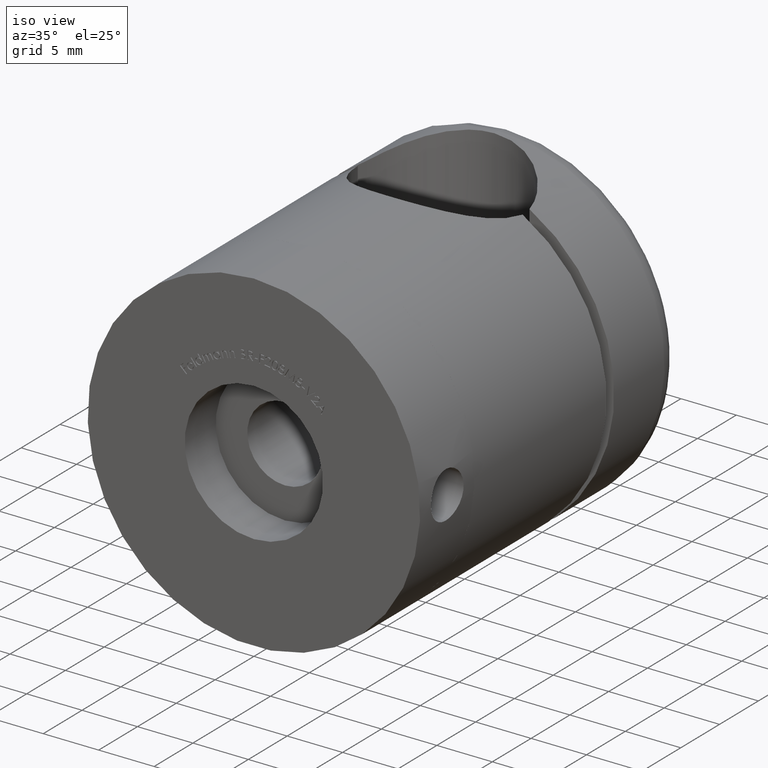
[diagram: clean part render]
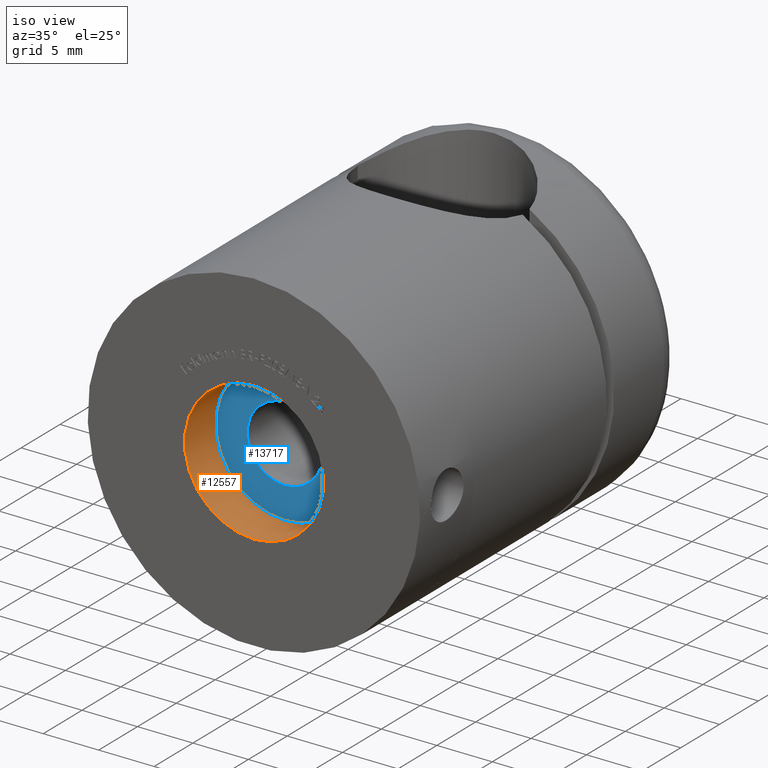
[diagram: same view with the hole feature highlighted: cylindrical wall and planar end face, labeled with their STEP entity ids]
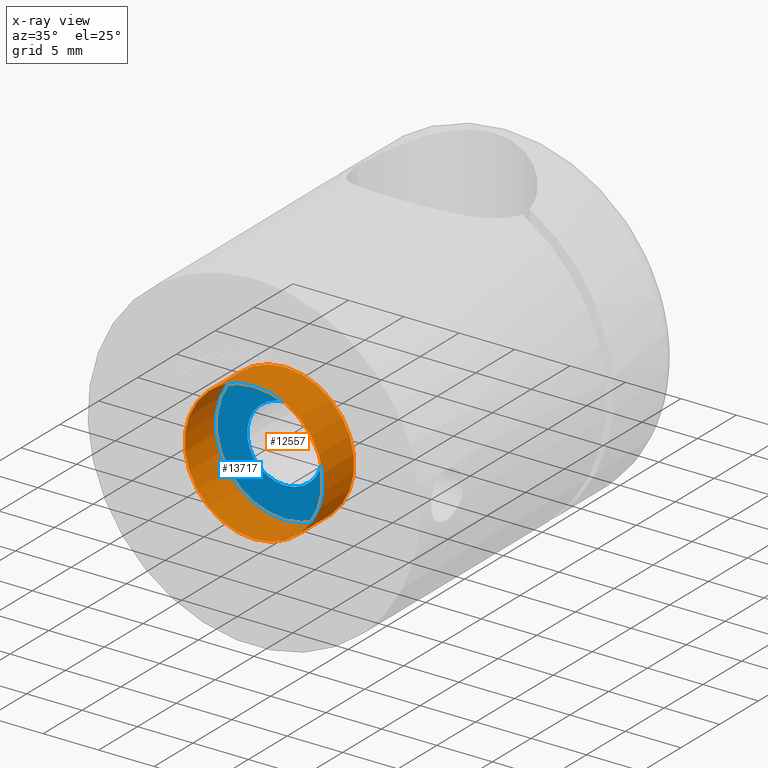
[diagram: x-ray of the same camera — body ghosted, the hole faces saturated]
A machine part, iso view. The highlighted faces form one hole feature of diameter 12.5 mm: the cylindrical wall (entity #12557, orange) and its adjacent planar end face (entity #13717, blue) — they share a circular edge in the B-rep.
The next image is the same camera in x-ray (body ghosted, the hole faces saturated) — the bore reads through the body.
Wall:
#772 = FACE_OUTER_BOUND ( 'NONE', #7013, .T. ) ;
#1117 = DIRECTION ( 'NONE',  ( -0.0000000000000000000, -1.000000000000000000, -0.0000000000000000000 ) ) ;
#2515 = ORIENTED_EDGE ( 'NONE', *, *, #9032, .T. ) ;
#3963 = AXIS2_PLACEMENT_3D ( 'NONE', #4089, #14645, #17186 ) ;
#4089 = CARTESIAN_POINT ( 'NONE',  ( 0.0000000000000000000, 0.0000000000000000000, 0.0000000000000000000 ) ) ;
#4658 = EDGE_CURVE ( 'NONE', #11139, #11139, #10332, .T. ) ;
#5458 = ORIENTED_EDGE ( 'NONE', *, *, #4658, .F. ) ;
#6183 = CARTESIAN_POINT ( 'NONE',  ( 0.0000000000000000000, 4.000000000000000000, -6.250000000000000000 ) ) ;
#6445 = CARTESIAN_POINT ( 'NONE',  ( 0.0000000000000000000, 4.000000000000000000, 0.0000000000000000000 ) ) ;
#7013 = EDGE_LOOP ( 'NONE', ( #2515 ) ) ;
#7903 = EDGE_LOOP ( 'NONE', ( #5458 ) ) ;
#8162 = CARTESIAN_POINT ( 'NONE',  ( 0.0000000000000000000, 4.000000000000000000, 0.0000000000000000000 ) ) ;
#8732 = CARTESIAN_POINT ( 'NONE',  ( 0.0000000000000000000, 0.0000000000000000000, -6.250000000000000000 ) ) ;
#9032 = EDGE_CURVE ( 'NONE', #13819, #13819, #9314, .T. ) ;
#9314 = CIRCLE ( 'NONE', #3963, 6.250000000000000000 ) ;
#9512 = DIRECTION ( 'NONE',  ( 0.0000000000000000000, -1.000000000000000000, 0.0000000000000000000 ) ) ;
#9912 = CYLINDRICAL_SURFACE ( 'NONE', #16002, 6.250000000000000000 ) ;
#10332 = CIRCLE ( 'NONE', #11126, 6.250000000000000000 ) ;
#11126 = AXIS2_PLACEMENT_3D ( 'NONE', #8162, #9512, #11168 ) ;
#11139 = VERTEX_POINT ( 'NONE', #6183 ) ;
#11168 = DIRECTION ( 'NONE',  ( 0.0000000000000000000, 0.0000000000000000000, -1.000000000000000000 ) ) ;
#11982 = FACE_OUTER_BOUND ( 'NONE', #7903, .T. ) ;
#12557 = ADVANCED_FACE ( 'NONE', ( #11982, #772 ), #9912, .F. ) ;
#13819 = VERTEX_POINT ( 'NONE', #8732 ) ;
#14645 = DIRECTION ( 'NONE',  ( 0.0000000000000000000, -1.000000000000000000, 0.0000000000000000000 ) ) ;
#15514 = DIRECTION ( 'NONE',  ( 0.0000000000000000000, 0.0000000000000000000, -1.000000000000000000 ) ) ;
#16002 = AXIS2_PLACEMENT_3D ( 'NONE', #6445, #1117, #15514 ) ;
#17186 = DIRECTION ( 'NONE',  ( 0.0000000000000000000, 0.0000000000000000000, -1.000000000000000000 ) ) ;
End face:
#133 = FACE_OUTER_BOUND ( 'NONE', #16533, .T. ) ;
#224 = ORIENTED_EDGE ( 'NONE', *, *, #4658, .T. ) ;
#2255 = ORIENTED_EDGE ( 'NONE', *, *, #6962, .F. ) ;
#2877 = DIRECTION ( 'NONE',  ( 0.0000000000000000000, -0.0000000000000000000, -1.000000000000000000 ) ) ;
#4064 = AXIS2_PLACEMENT_3D ( 'NONE', #9614, #12096, #9444 ) ;
#4142 = DIRECTION ( 'NONE',  ( 0.0000000000000000000, -1.000000000000000000, 0.0000000000000000000 ) ) ;
#4658 = EDGE_CURVE ( 'NONE', #11139, #11139, #10332, .T. ) ;
#6183 = CARTESIAN_POINT ( 'NONE',  ( 0.0000000000000000000, 4.000000000000000000, -6.250000000000000000 ) ) ;
#6781 = CIRCLE ( 'NONE', #4064, 3.399999999999998600 ) ;
#6962 = EDGE_CURVE ( 'NONE', #7167, #7167, #6781, .T. ) ;
#7167 = VERTEX_POINT ( 'NONE', #16545 ) ;
#7174 = FACE_BOUND ( 'NONE', #8391, .T. ) ;
#8136 = CARTESIAN_POINT ( 'NONE',  ( 0.0000000000000000000, 4.000000000000000000, 0.0000000000000000000 ) ) ;
#8162 = CARTESIAN_POINT ( 'NONE',  ( 0.0000000000000000000, 4.000000000000000000, 0.0000000000000000000 ) ) ;
#8391 = EDGE_LOOP ( 'NONE', ( #2255 ) ) ;
#9444 = DIRECTION ( 'NONE',  ( 0.0000000000000000000, 0.0000000000000000000, -1.000000000000000000 ) ) ;
#9512 = DIRECTION ( 'NONE',  ( 0.0000000000000000000, -1.000000000000000000, 0.0000000000000000000 ) ) ;
#9614 = CARTESIAN_POINT ( 'NONE',  ( 0.0000000000000000000, 4.000000000000000000, 0.0000000000000000000 ) ) ;
#10332 = CIRCLE ( 'NONE', #11126, 6.250000000000000000 ) ;
#10646 = PLANE ( 'NONE',  #16127 ) ;
#11126 = AXIS2_PLACEMENT_3D ( 'NONE', #8162, #9512, #11168 ) ;
#11139 = VERTEX_POINT ( 'NONE', #6183 ) ;
#11168 = DIRECTION ( 'NONE',  ( 0.0000000000000000000, 0.0000000000000000000, -1.000000000000000000 ) ) ;
#12096 = DIRECTION ( 'NONE',  ( -0.0000000000000000000, -1.000000000000000000, -0.0000000000000000000 ) ) ;
#13717 = ADVANCED_FACE ( 'NONE', ( #7174, #133 ), #10646, .T. ) ;
#16127 = AXIS2_PLACEMENT_3D ( 'NONE', #8136, #4142, #2877 ) ;
#16533 = EDGE_LOOP ( 'NONE', ( #224 ) ) ;
#16545 = CARTESIAN_POINT ( 'NONE',  ( 0.0000000000000000000, 4.000000000000000000, -3.399999999999998600 ) ) ;